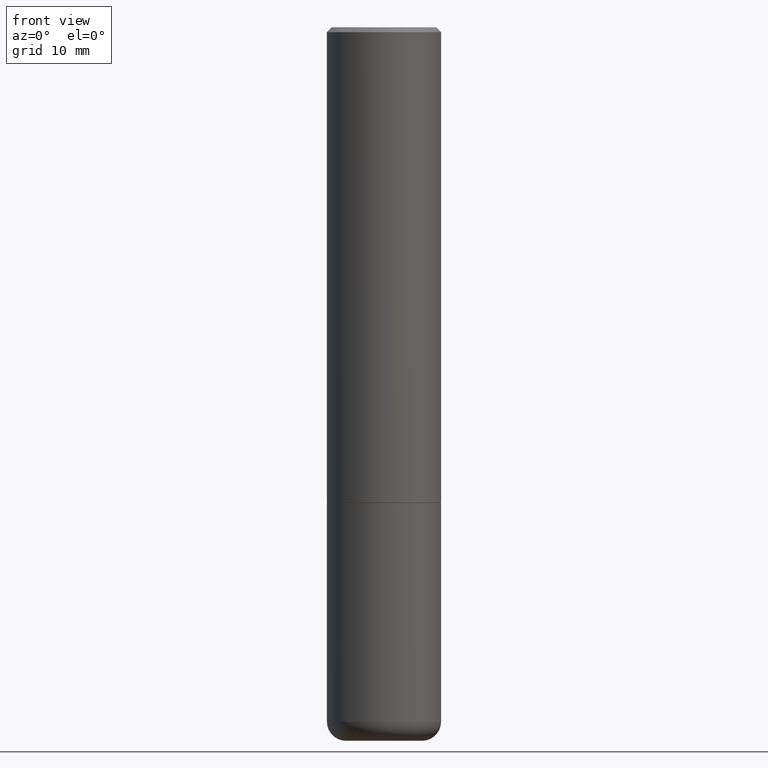
[diagram: clean part render]
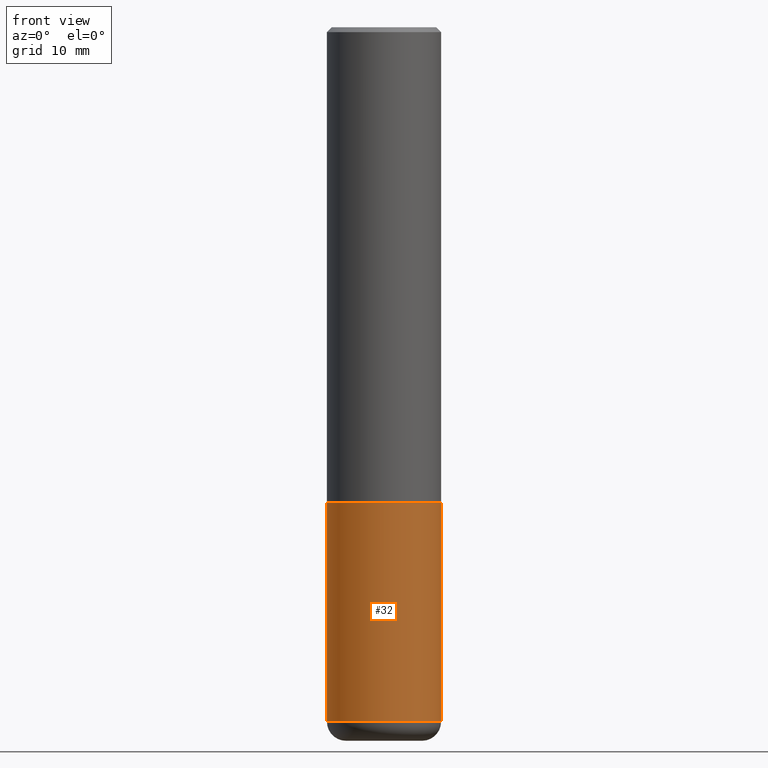
[diagram: same view with one face highlighted and labeled with its STEP entity id]
A machine part, front view. The second image highlights one B-rep face of the part: STEP entity #32.
In plain terms, the highlighted cylindrical surface (partial cylindrical patch) has radius 5.9995 mm, axis along (-0, 0, 1).
Its self-contained STEP definition (entity closure, byte-faithful):
#3 = ORIENTED_EDGE ( 'NONE', *, *, #385, .T. ) ;
#6 = VECTOR ( 'NONE', #168, 39.37007874015748143 ) ;
#19 = AXIS2_PLACEMENT_3D ( 'NONE', #22, #380, #86 ) ;
#22 = CARTESIAN_POINT ( 'NONE',  ( 0.000000000000000000, 0.000000000000000000, 0.000000000000000000 ) ) ;
#26 = CIRCLE ( 'NONE', #117, 0.2361999999999999933 ) ;
#32 = ADVANCED_FACE ( 'NONE', ( #355 ), #106, .T. ) ;
#41 = VERTEX_POINT ( 'NONE', #246 ) ;
#52 = LINE ( 'NONE', #416, #366 ) ;
#55 = DIRECTION ( 'NONE',  ( 1.000000000000000000, -6.982962677686265133E-15, 0.000000000000000000 ) ) ;
#58 = EDGE_CURVE ( 'NONE', #417, #309, #207, .T. ) ;
#77 = LINE ( 'NONE', #397, #6 ) ;
#82 = DIRECTION ( 'NONE',  ( -2.445468806185136877E-29, 3.491481338843145188E-15, 1.000000000000000000 ) ) ;
#86 = DIRECTION ( 'NONE',  ( 1.000000000000000000, -6.982962677686266711E-15, 4.876176775795936353E-29 ) ) ;
#89 = CARTESIAN_POINT ( 'NONE',  ( 7.028521895856700897E-29, -1.003486651596908519E-14, -2.874099999999999877 ) ) ;
#106 = CYLINDRICAL_SURFACE ( 'NONE', #19, 0.2361999999999999933 ) ;
#117 = AXIS2_PLACEMENT_3D ( 'NONE', #406, #306, #348 ) ;
#126 = EDGE_LOOP ( 'NONE', ( #148, #252, #3, #285 ) ) ;
#148 = ORIENTED_EDGE ( 'NONE', *, *, #210, .F. ) ;
#154 = EDGE_CURVE ( 'NONE', #41, #372, #26, .T. ) ;
#168 = DIRECTION ( 'NONE',  ( -2.445468806185136877E-29, 3.491481338843145188E-15, 1.000000000000000000 ) ) ;
#207 = CIRCLE ( 'NONE', #400, 0.2361999999999999933 ) ;
#210 = EDGE_CURVE ( 'NONE', #417, #41, #77, .T. ) ;
#212 = CARTESIAN_POINT ( 'NONE',  ( 0.2361999999999999655, -1.168424230043858014E-14, -2.874099999999999877 ) ) ;
#213 = CARTESIAN_POINT ( 'NONE',  ( 0.2361999999999999933, -8.522356799982226655E-15, -1.968499999999999694 ) ) ;
#246 = CARTESIAN_POINT ( 'NONE',  ( -0.2361999999999999933, -6.775621823875550476E-15, -1.968499999999999694 ) ) ;
#252 = ORIENTED_EDGE ( 'NONE', *, *, #58, .T. ) ;
#285 = ORIENTED_EDGE ( 'NONE', *, *, #154, .F. ) ;
#306 = DIRECTION ( 'NONE',  ( -2.445468806185136597E-29, 3.491481338843145583E-15, 1.000000000000000000 ) ) ;
#309 = VERTEX_POINT ( 'NONE', #212 ) ;
#348 = DIRECTION ( 'NONE',  ( 1.000000000000000000, -6.982962677686265133E-15, 0.000000000000000000 ) ) ;
#350 = CARTESIAN_POINT ( 'NONE',  ( -0.2361999999999999655, -8.356564574103728795E-15, -2.874099999999999877 ) ) ;
#355 = FACE_OUTER_BOUND ( 'NONE', #126, .T. ) ;
#366 = VECTOR ( 'NONE', #82, 39.37007874015748143 ) ;
#372 = VERTEX_POINT ( 'NONE', #213 ) ;
#380 = DIRECTION ( 'NONE',  ( -2.445468806185136597E-29, 3.491481338843145583E-15, 1.000000000000000000 ) ) ;
#383 = DIRECTION ( 'NONE',  ( -2.445468806185136597E-29, 3.491481338843145583E-15, 1.000000000000000000 ) ) ;
#385 = EDGE_CURVE ( 'NONE', #309, #372, #52, .T. ) ;
#397 = CARTESIAN_POINT ( 'NONE',  ( -0.2361999999999999933, 1.678301941865356591E-15, -1.161852468318208757E-29 ) ) ;
#400 = AXIS2_PLACEMENT_3D ( 'NONE', #89, #383, #55 ) ;
#406 = CARTESIAN_POINT ( 'NONE',  ( 4.813905344975440714E-29, -6.872981015512730918E-15, -1.968499999999999694 ) ) ;
#416 = CARTESIAN_POINT ( 'NONE',  ( 0.2361999999999999933, -1.649375784469496131E-15, 1.151752954443000088E-29 ) ) ;
#417 = VERTEX_POINT ( 'NONE', #350 ) ;